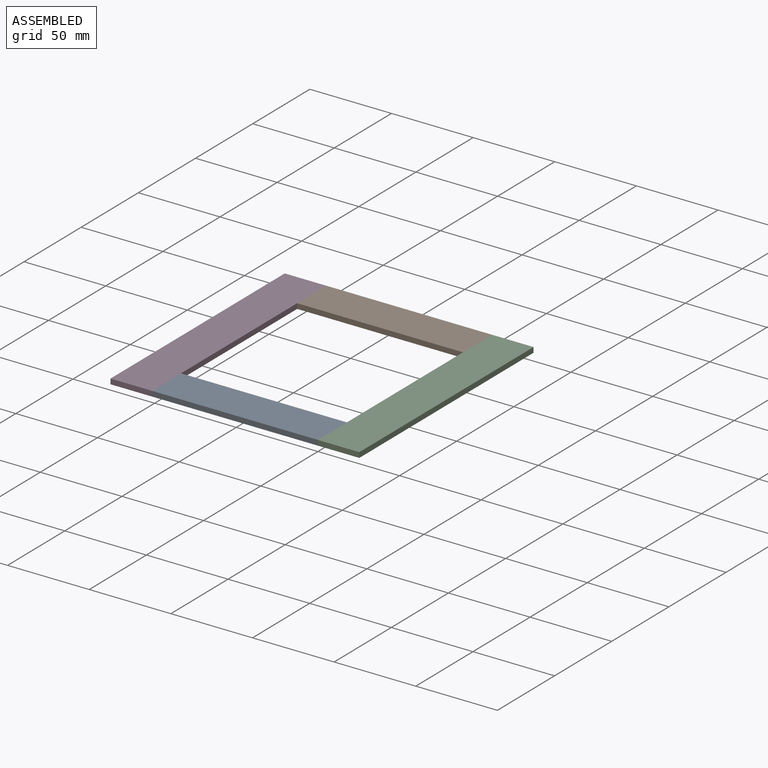
[diagram: assembled view]
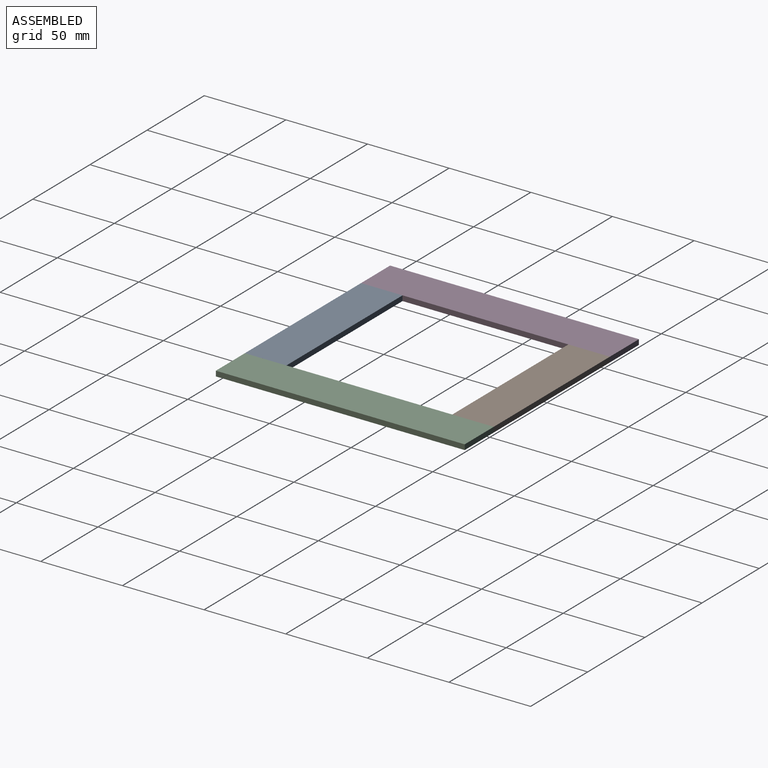
[diagram: assembled view, second angle]
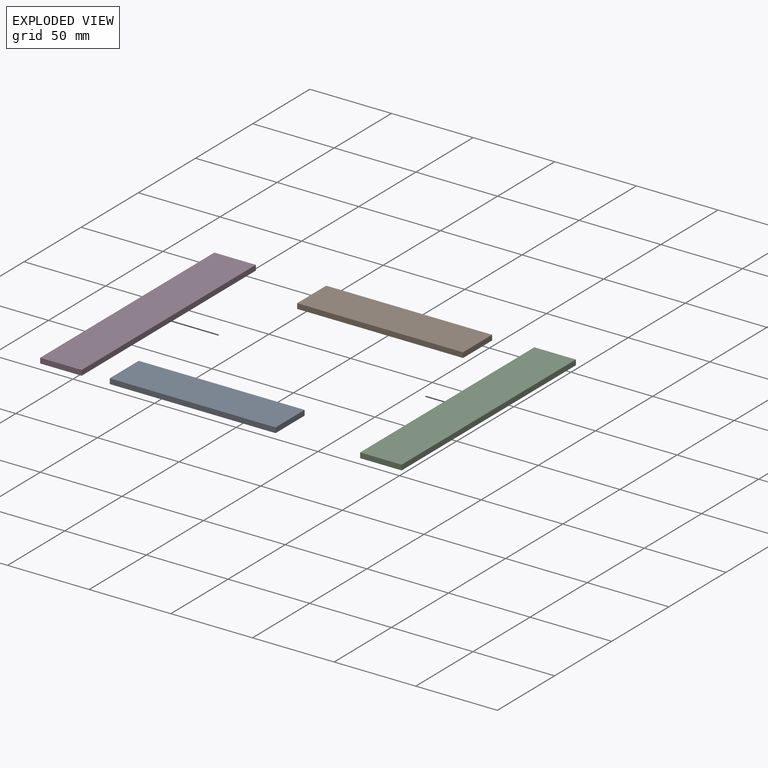
[diagram: exploded view]
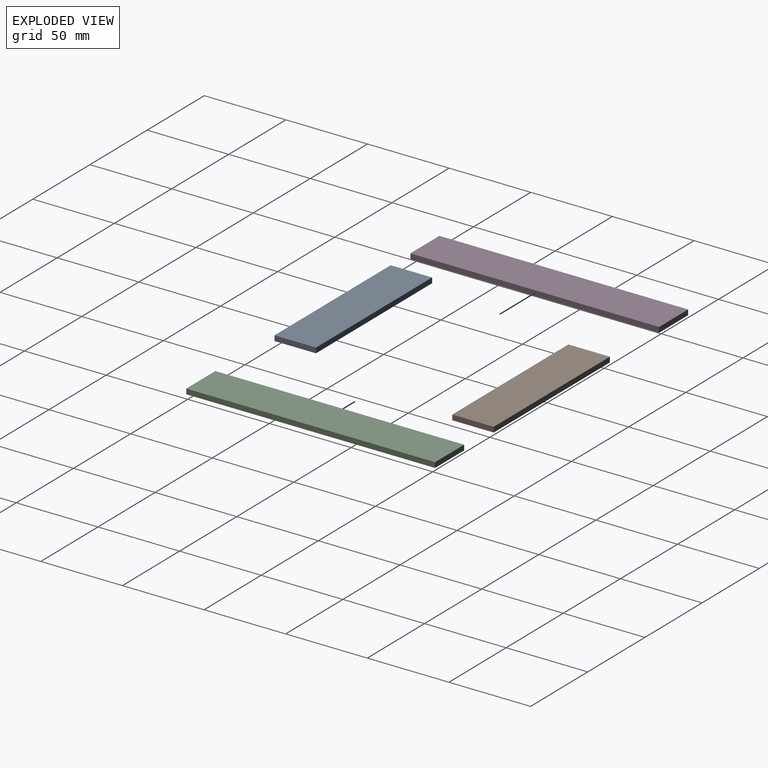
[diagram: exploded view, second angle]
ASSEMBLY  parts=4 mates=3
PART A: 6 faces, bbox 101.6x25.4x3.2 mm
  f0: plane 101.6x3.18mm, normal (0,1,0), area 322.6mm2, adj f1,f3,f4,f5
  f1: plane 25.4x3.18mm, normal (-1,0,0), area 80.6mm2, adj f0,f2,f4,f5
  f2: plane 101.6x3.18mm, normal (0,-1,0), area 322.6mm2, adj f1,f3,f4,f5
  f3: plane 25.4x3.18mm, normal (1,0,0), area 80.6mm2, adj f0,f2,f4,f5
  f4: plane 101.6x25.4mm, normal (0,0,1), area 2580.6mm2, adj f0,f1,f2,f3
  f5: plane 101.6x25.4mm, normal (0,0,-1), area 2580.6mm2, adj f0,f1,f2,f3
PART B: 6 faces, bbox 101.6x25.4x3.2 mm
  f0: plane 101.6x3.18mm, normal (0,1,0), area 322.6mm2, adj f1,f3,f4,f5
  f1: plane 25.4x3.18mm, normal (-1,0,0), area 80.6mm2, adj f0,f2,f4,f5
  f2: plane 101.6x3.18mm, normal (0,-1,0), area 322.6mm2, adj f1,f3,f4,f5
  f3: plane 25.4x3.18mm, normal (1,0,0), area 80.6mm2, adj f0,f2,f4,f5
  f4: plane 101.6x25.4mm, normal (0,0,1), area 2580.6mm2, adj f0,f1,f2,f3
  f5: plane 101.6x25.4mm, normal (0,0,-1), area 2580.6mm2, adj f0,f1,f2,f3
PART C: 6 faces, bbox 25.4x152.4x3.2 mm
  f0: plane 152.4x3.18mm, normal (1,0,0), area 483.9mm2, adj f1,f3,f4,f5
  f1: plane 25.4x3.18mm, normal (0,1,0), area 80.6mm2, adj f0,f2,f4,f5
  f2: plane 152.4x3.18mm, normal (-1,0,0), area 483.9mm2, adj f1,f3,f4,f5
  f3: plane 25.4x3.18mm, normal (0,-1,0), area 80.6mm2, adj f0,f2,f4,f5
  f4: plane 152.4x25.4mm, normal (0,0,1), area 3871mm2, adj f0,f1,f2,f3
  f5: plane 152.4x25.4mm, normal (0,0,-1), area 3871mm2, adj f0,f1,f2,f3
PART D: 6 faces, bbox 25.4x152.4x3.2 mm
  f0: plane 152.4x3.18mm, normal (1,0,0), area 483.9mm2, adj f1,f3,f4,f5
  f1: plane 25.4x3.18mm, normal (0,1,0), area 80.6mm2, adj f0,f2,f4,f5
  f2: plane 152.4x3.18mm, normal (-1,0,0), area 483.9mm2, adj f1,f3,f4,f5
  f3: plane 25.4x3.18mm, normal (0,-1,0), area 80.6mm2, adj f0,f2,f4,f5
  f4: plane 152.4x25.4mm, normal (0,0,1), area 3871mm2, adj f0,f1,f2,f3
  f5: plane 152.4x25.4mm, normal (0,0,-1), area 3871mm2, adj f0,f1,f2,f3
PLACE A t=(-50.8,76.2,-152.4)mm
PLACE B t=(-50.8,76.2,-152.4)mm
PLACE C t=(-50.8,76.2,-152.4)mm
PLACE D t=(-50.8,76.2,-152.4)mm
MATE fastened B.f1 <-> D.f0  axis (-1,0,0) through (-101.6,152.4,3.18)mm
MATE fastened A.f3 <-> C.f2  axis (1,0,0) through (0,0,3.18)mm
MATE fastened D.f0 <-> A.f1  axis (1,0,0) through (-101.6,0,3.18)mm
